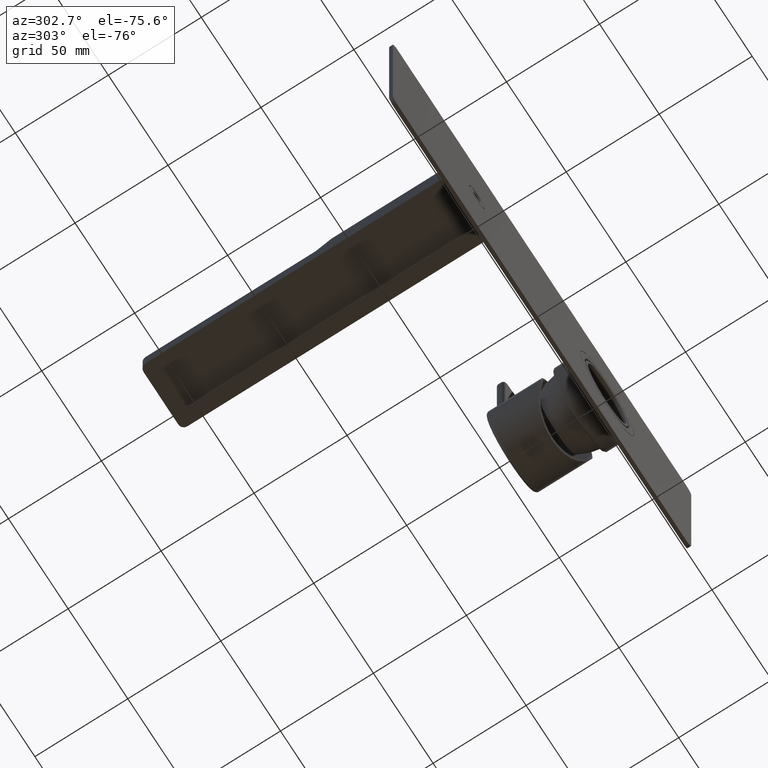
[diagram: clean part render]
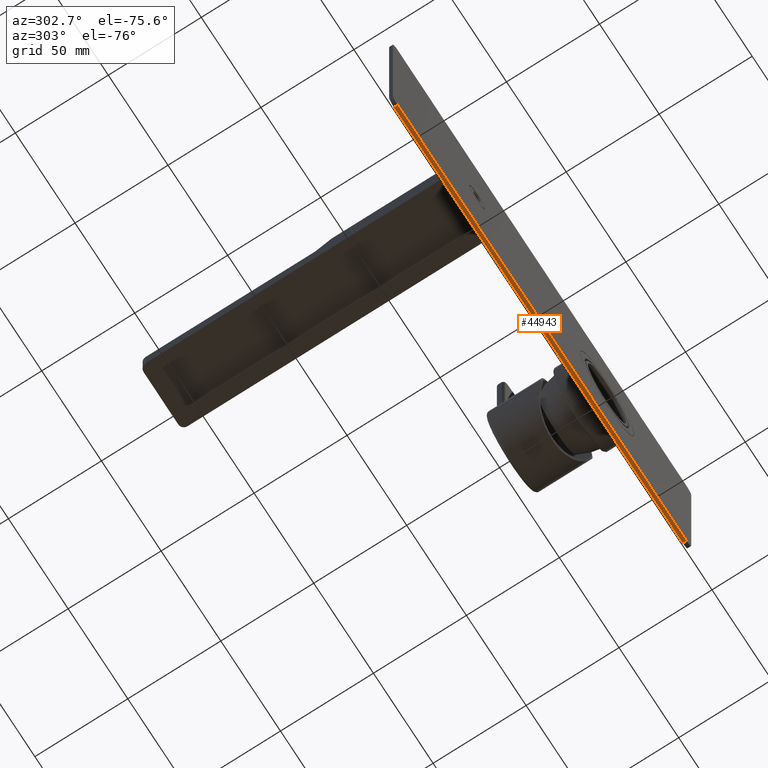
[diagram: same view with one face highlighted and labeled with its STEP entity id]
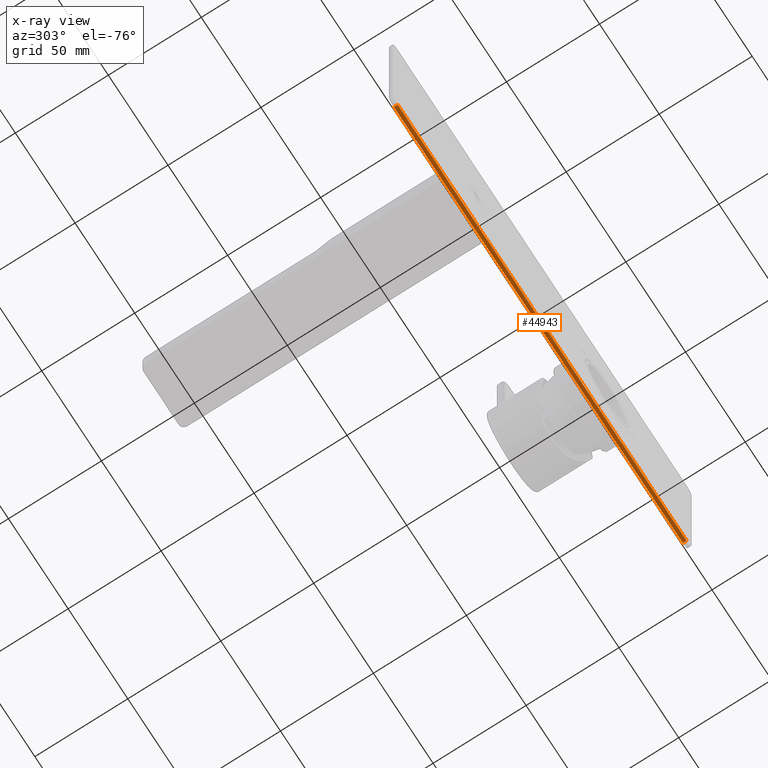
[diagram: x-ray of the same camera — body ghosted, the highlighted face saturated]
A machine part, auxiliary view. The second image highlights one B-rep face of the part: STEP entity #44943.
The next image is the same camera in x-ray: the body ghosted, the highlighted face saturated — about 0% of this face is hidden behind the body in this view.
In plain terms, the highlighted planar face has unit normal (0, 0, -1).
Its self-contained STEP definition (entity closure, byte-faithful):
#42435=DIRECTION('',(-1.E0,0.E0,0.E0));
#42436=VECTOR('',#42435,2.42E2);
#42437=CARTESIAN_POINT('',(1.755E2,5.E1,-5.E1));
#42438=LINE('',#42437,#42436);
#42524=DIRECTION('',(-1.E0,0.E0,0.E0));
#42525=VECTOR('',#42524,2.42E2);
#42526=CARTESIAN_POINT('',(1.755E2,4.8E1,-5.E1));
#42527=LINE('',#42526,#42525);
#42572=DIRECTION('',(0.E0,-1.E0,0.E0));
#42573=VECTOR('',#42572,2.E0);
#42574=CARTESIAN_POINT('',(-6.65E1,5.E1,-5.E1));
#42575=LINE('',#42574,#42573);
#42576=DIRECTION('',(0.E0,-1.E0,0.E0));
#42577=VECTOR('',#42576,2.E0);
#42578=CARTESIAN_POINT('',(1.755E2,5.E1,-5.E1));
#42579=LINE('',#42578,#42577);
#44134=CARTESIAN_POINT('',(-6.65E1,4.8E1,-5.E1));
#44136=VERTEX_POINT('',#44134);
#44137=CARTESIAN_POINT('',(-6.65E1,5.E1,-5.E1));
#44138=VERTEX_POINT('',#44137);
#44157=CARTESIAN_POINT('',(1.755E2,4.8E1,-5.E1));
#44159=VERTEX_POINT('',#44157);
#44163=CARTESIAN_POINT('',(1.755E2,5.E1,-5.E1));
#44164=VERTEX_POINT('',#44163);
#44932=CARTESIAN_POINT('',(1.795E2,4.8E1,-5.E1));
#44933=DIRECTION('',(0.E0,0.E0,-1.E0));
#44934=DIRECTION('',(-1.E0,0.E0,0.E0));
#44935=AXIS2_PLACEMENT_3D('',#44932,#44933,#44934);
#44936=PLANE('',#44935);
#44937=ORIENTED_EDGE('',*,*,#44755,.T.);
#44938=ORIENTED_EDGE('',*,*,#44788,.F.);
#44939=ORIENTED_EDGE('',*,*,#44920,.F.);
#44940=ORIENTED_EDGE('',*,*,#44710,.T.);
#44941=EDGE_LOOP('',(#44937,#44938,#44939,#44940));
#44942=FACE_OUTER_BOUND('',#44941,.F.);
#44943=ADVANCED_FACE('',(#44942),#44936,.T.);
#44710=EDGE_CURVE('',#44164,#44138,#42438,.T.);
#44755=EDGE_CURVE('',#44138,#44136,#42575,.T.);
#44788=EDGE_CURVE('',#44159,#44136,#42527,.T.);
#44920=EDGE_CURVE('',#44164,#44159,#42579,.T.);